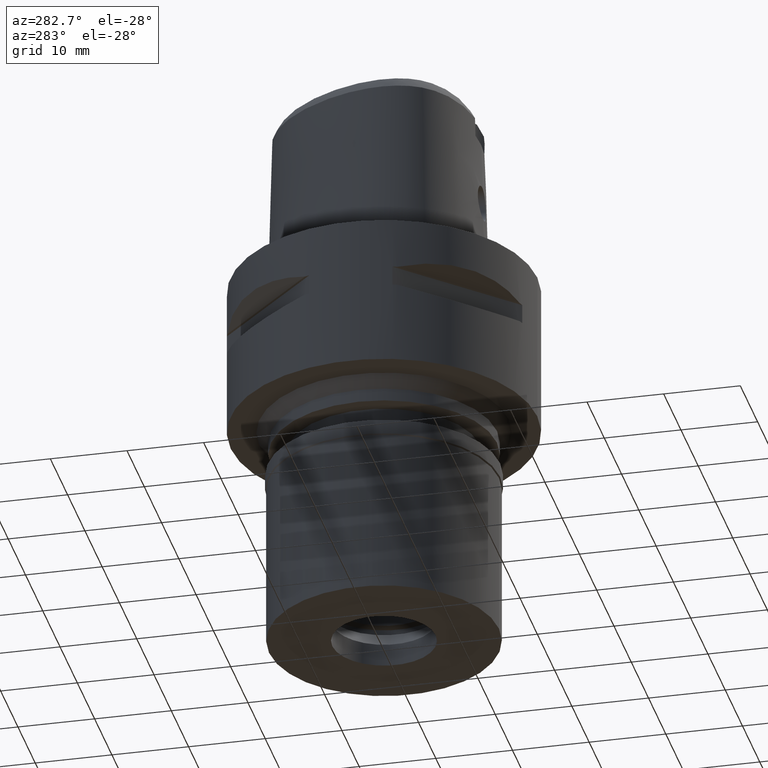
[diagram: clean part render]
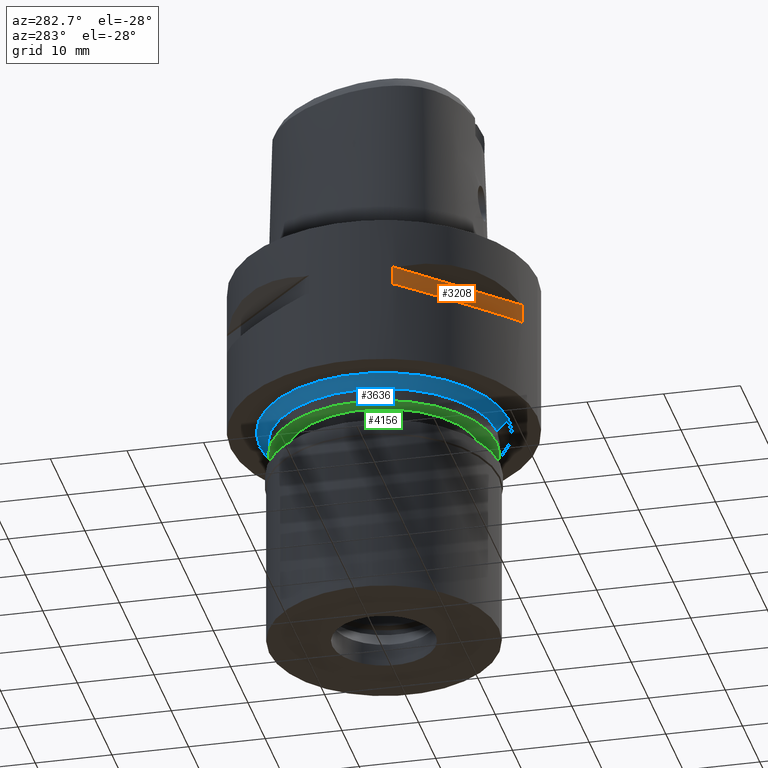
[diagram: same view with three faces highlighted in distinct colors, each labeled with its STEP entity id]
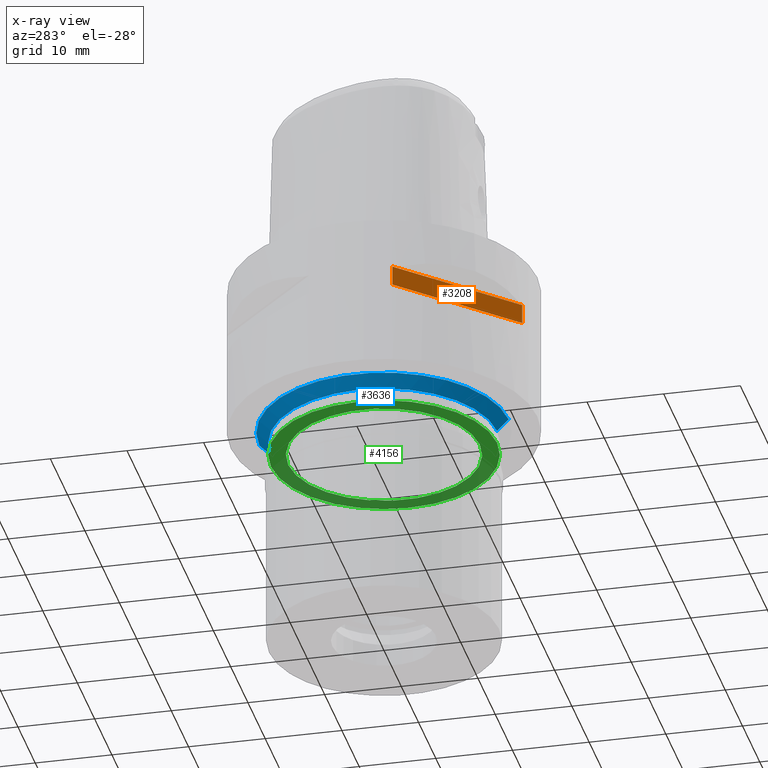
[diagram: x-ray of the same camera — body ghosted, the three highlighted faces saturated]
A machine part, auxiliary view with three faces highlighted in distinct colors.
The next image is the same camera in x-ray (body ghosted, the three faces saturated) — at least one of them is partly hidden behind the body in this view.
Their STEP definitions:

[orange] entity #3208 — the highlighted planar face has unit normal (0.7071, 0.7071, 0).
#304 = VECTOR ( 'NONE', #682, 1000.000000000000000 ) ;
#353 = VERTEX_POINT ( 'NONE', #2636 ) ;
#405 = DIRECTION ( 'NONE',  ( 0.7071067811865474617, -0.7071067811865474617, 0.0000000000000000000 ) ) ;
#682 = DIRECTION ( 'NONE',  ( 0.0000000000000000000, 0.0000000000000000000, 1.000000000000000000 ) ) ;
#736 = DIRECTION ( 'NONE',  ( 0.7071067811865474617, -0.7071067811865474617, 0.0000000000000000000 ) ) ;
#938 = ORIENTED_EDGE ( 'NONE', *, *, #1318, .T. ) ;
#1071 = LINE ( 'NONE', #4252, #304 ) ;
#1314 = LINE ( 'NONE', #4280, #3496 ) ;
#1318 = EDGE_CURVE ( 'NONE', #353, #3125, #1071, .T. ) ;
#1339 = DIRECTION ( 'NONE',  ( 0.0000000000000000000, 0.0000000000000000000, -1.000000000000000000 ) ) ;
#1396 = VECTOR ( 'NONE', #405, 1000.000000000000114 ) ;
#1448 = LINE ( 'NONE', #3971, #4451 ) ;
#1695 = DIRECTION ( 'NONE',  ( 0.7071067811865475727, 0.7071067811865475727, 0.0000000000000000000 ) ) ;
#1713 = EDGE_CURVE ( 'NONE', #3916, #353, #1448, .T. ) ;
#2206 = CARTESIAN_POINT ( 'NONE',  ( -19.24906036483000094, -5.428966298580000682, -6.700000000000000178 ) ) ;
#2208 = CARTESIAN_POINT ( 'NONE',  ( -19.24906036483000094, -5.428966298579000593, -6.700000000000000178 ) ) ;
#2532 = EDGE_LOOP ( 'NONE', ( #3256, #3490, #3942, #938 ) ) ;
#2607 = VERTEX_POINT ( 'NONE', #2206 ) ;
#2636 = CARTESIAN_POINT ( 'NONE',  ( -5.428966298580000682, -19.24906036483000094, -9.299999999999998934 ) ) ;
#2796 = CARTESIAN_POINT ( 'NONE',  ( -5.428966298579000593, -19.24906036483000094, -6.700000000000000178 ) ) ;
#2949 = LINE ( 'NONE', #2208, #1396 ) ;
#3125 = VERTEX_POINT ( 'NONE', #2796 ) ;
#3208 = ADVANCED_FACE ( 'NONE', ( #4254 ), #4205, .F. ) ;
#3256 = ORIENTED_EDGE ( 'NONE', *, *, #4160, .F. ) ;
#3280 = EDGE_CURVE ( 'NONE', #2607, #3916, #1314, .T. ) ;
#3312 = CARTESIAN_POINT ( 'NONE',  ( -19.24906036483000094, -5.428966298579000593, -9.299999999999998934 ) ) ;
#3490 = ORIENTED_EDGE ( 'NONE', *, *, #3280, .T. ) ;
#3496 = VECTOR ( 'NONE', #4558, 1000.000000000000000 ) ;
#3565 = CARTESIAN_POINT ( 'NONE',  ( -1.732411613907000048, -22.94561504949999886, -6.700000000000000178 ) ) ;
#3641 = AXIS2_PLACEMENT_3D ( 'NONE', #3565, #1695, #1339 ) ;
#3916 = VERTEX_POINT ( 'NONE', #3312 ) ;
#3942 = ORIENTED_EDGE ( 'NONE', *, *, #1713, .T. ) ;
#3971 = CARTESIAN_POINT ( 'NONE',  ( -19.24906036483000094, -5.428966298579000593, -9.299999999999998934 ) ) ;
#4160 = EDGE_CURVE ( 'NONE', #2607, #3125, #2949, .T. ) ;
#4205 = PLANE ( 'NONE',  #3641 ) ;
#4252 = CARTESIAN_POINT ( 'NONE',  ( -5.428966298579000593, -19.24906036483000094, -9.299999999999998934 ) ) ;
#4254 = FACE_OUTER_BOUND ( 'NONE', #2532, .T. ) ;
#4280 = CARTESIAN_POINT ( 'NONE',  ( -19.24906036483000094, -5.428966298579000593, -6.700000000000000178 ) ) ;
#4451 = VECTOR ( 'NONE', #736, 1000.000000000000114 ) ;
#4558 = DIRECTION ( 'NONE',  ( 0.0000000000000000000, 0.0000000000000000000, -1.000000000000000000 ) ) ;

[blue] entity #3636 — the highlighted conical surface has half-angle 45 deg.
#49 = DIRECTION ( 'NONE',  ( 0.0000000000000000000, -1.000000000000000000, 0.0000000000000000000 ) ) ;
#110 = DIRECTION ( 'NONE',  ( 0.0000000000000000000, 0.7071067811865474617, -0.7071067811865474617 ) ) ;
#223 = DIRECTION ( 'NONE',  ( 0.0000000000000000000, 0.0000000000000000000, 1.000000000000000000 ) ) ;
#516 = VERTEX_POINT ( 'NONE', #3797 ) ;
#548 = AXIS2_PLACEMENT_3D ( 'NONE', #4316, #4340, #2901 ) ;
#636 = CONICAL_SURFACE ( 'NONE', #1007, 15.50000000000000000, 0.7853981633972997312 ) ;
#910 = CARTESIAN_POINT ( 'NONE',  ( 0.0000000000000000000, 0.0000000000000000000, -20.75000000000000000 ) ) ;
#1007 = AXIS2_PLACEMENT_3D ( 'NONE', #910, #223, #3793 ) ;
#1052 = CARTESIAN_POINT ( 'NONE',  ( 0.0000000000000000000, -14.75000000000000000, -21.50000000000000000 ) ) ;
#1138 = VERTEX_POINT ( 'NONE', #3128 ) ;
#1144 = CIRCLE ( 'NONE', #3024, 14.75000000000000000 ) ;
#1180 = ORIENTED_EDGE ( 'NONE', *, *, #1545, .F. ) ;
#1218 = ORIENTED_EDGE ( 'NONE', *, *, #3460, .T. ) ;
#1358 = VECTOR ( 'NONE', #110, 1000.000000000000114 ) ;
#1545 = EDGE_CURVE ( 'NONE', #4286, #3332, #4022, .T. ) ;
#1867 = CARTESIAN_POINT ( 'NONE',  ( 0.0000000000000000000, 0.0000000000000000000, -21.50000000000000000 ) ) ;
#2655 = FACE_OUTER_BOUND ( 'NONE', #2927, .T. ) ;
#2901 = DIRECTION ( 'NONE',  ( 0.0000000000000000000, -1.000000000000000000, 0.0000000000000000000 ) ) ;
#2927 = EDGE_LOOP ( 'NONE', ( #3517, #1180, #4641, #1218 ) ) ;
#3024 = AXIS2_PLACEMENT_3D ( 'NONE', #1867, #3290, #49 ) ;
#3128 = CARTESIAN_POINT ( 'NONE',  ( 0.0000000000000000000, 14.75000000000000000, -21.50000000000000000 ) ) ;
#3226 = CARTESIAN_POINT ( 'NONE',  ( 0.0000000000000000000, 16.25000000000000000, -20.00000000000000000 ) ) ;
#3270 = DIRECTION ( 'NONE',  ( 0.0000000000000000000, -0.7071067811865474617, -0.7071067811865474617 ) ) ;
#3290 = DIRECTION ( 'NONE',  ( 0.0000000000000000000, 0.0000000000000000000, -1.000000000000000000 ) ) ;
#3332 = VERTEX_POINT ( 'NONE', #1052 ) ;
#3353 = CARTESIAN_POINT ( 'NONE',  ( 0.0000000000000000000, -16.25000000000000000, -20.00000000000000000 ) ) ;
#3460 = EDGE_CURVE ( 'NONE', #516, #1138, #3979, .T. ) ;
#3517 = ORIENTED_EDGE ( 'NONE', *, *, #3559, .F. ) ;
#3559 = EDGE_CURVE ( 'NONE', #3332, #1138, #1144, .T. ) ;
#3636 = ADVANCED_FACE ( 'NONE', ( #2655 ), #636, .T. ) ;
#3793 = DIRECTION ( 'NONE',  ( 0.0000000000000000000, 1.000000000000000000, 0.0000000000000000000 ) ) ;
#3797 = CARTESIAN_POINT ( 'NONE',  ( 0.0000000000000000000, 16.25000000000000000, -20.00000000000000000 ) ) ;
#3979 = LINE ( 'NONE', #3226, #4552 ) ;
#4017 = CARTESIAN_POINT ( 'NONE',  ( 0.0000000000000000000, -16.25000000000000000, -20.00000000000000000 ) ) ;
#4022 = LINE ( 'NONE', #3353, #1358 ) ;
#4108 = EDGE_CURVE ( 'NONE', #4286, #516, #4639, .T. ) ;
#4286 = VERTEX_POINT ( 'NONE', #4017 ) ;
#4316 = CARTESIAN_POINT ( 'NONE',  ( 0.0000000000000000000, 0.0000000000000000000, -20.00000000000000000 ) ) ;
#4340 = DIRECTION ( 'NONE',  ( 0.0000000000000000000, 0.0000000000000000000, -1.000000000000000000 ) ) ;
#4552 = VECTOR ( 'NONE', #3270, 1000.000000000000114 ) ;
#4639 = CIRCLE ( 'NONE', #548, 16.25000000000000000 ) ;
#4641 = ORIENTED_EDGE ( 'NONE', *, *, #4108, .T. ) ;

[green] entity #4156 — the highlighted planar face has unit normal (0, 0, -1).
#25 = DIRECTION ( 'NONE',  ( 0.0000000000000000000, -1.000000000000000000, 0.0000000000000000000 ) ) ;
#116 = CARTESIAN_POINT ( 'NONE',  ( 0.0000000000000000000, 1.249139735129999848E-14, -23.19999999999999929 ) ) ;
#384 = CARTESIAN_POINT ( 'NONE',  ( 0.0000000000000000000, 14.75000000000000000, -23.19999999999999929 ) ) ;
#421 = EDGE_CURVE ( 'NONE', #4262, #2824, #4069, .T. ) ;
#586 = DIRECTION ( 'NONE',  ( 0.0000000000000000000, 0.0000000000000000000, -1.000000000000000000 ) ) ;
#607 = CARTESIAN_POINT ( 'NONE',  ( 0.0000000000000000000, 1.249139735129999848E-14, -23.19999999999999929 ) ) ;
#609 = EDGE_CURVE ( 'NONE', #3365, #4190, #3173, .T. ) ;
#722 = FACE_BOUND ( 'NONE', #3331, .T. ) ;
#737 = PLANE ( 'NONE',  #3954 ) ;
#813 = CARTESIAN_POINT ( 'NONE',  ( 0.0000000000000000000, -14.75000000000000000, -23.19999999999999929 ) ) ;
#841 = CIRCLE ( 'NONE', #1302, 14.75000000000000000 ) ;
#880 = DIRECTION ( 'NONE',  ( 0.0000000000000000000, 1.000000000000000000, 0.0000000000000000000 ) ) ;
#913 = DIRECTION ( 'NONE',  ( 0.0000000000000000000, 0.0000000000000000000, 1.000000000000000000 ) ) ;
#1091 = CARTESIAN_POINT ( 'NONE',  ( 0.0000000000000000000, 0.0000000000000000000, -23.19999999999999929 ) ) ;
#1200 = ORIENTED_EDGE ( 'NONE', *, *, #421, .F. ) ;
#1302 = AXIS2_PLACEMENT_3D ( 'NONE', #607, #1990, #3358 ) ;
#1511 = DIRECTION ( 'NONE',  ( 0.0000000000000000000, 0.0000000000000000000, -1.000000000000000000 ) ) ;
#1672 = CARTESIAN_POINT ( 'NONE',  ( 0.0000000000000000000, 1.249139735129999848E-14, -23.19999999999999929 ) ) ;
#1990 = DIRECTION ( 'NONE',  ( 0.0000000000000000000, 0.0000000000000000000, 1.000000000000000000 ) ) ;
#2067 = ORIENTED_EDGE ( 'NONE', *, *, #609, .F. ) ;
#2239 = AXIS2_PLACEMENT_3D ( 'NONE', #4422, #913, #4181 ) ;
#2660 = DIRECTION ( 'NONE',  ( 0.0000000000000000000, -1.000000000000000000, 0.0000000000000000000 ) ) ;
#2724 = AXIS2_PLACEMENT_3D ( 'NONE', #116, #4122, #880 ) ;
#2824 = VERTEX_POINT ( 'NONE', #813 ) ;
#2926 = CARTESIAN_POINT ( 'NONE',  ( 0.0000000000000000000, 12.50000000000000000, -23.19999999999999929 ) ) ;
#3109 = CIRCLE ( 'NONE', #2724, 12.50000000000000000 ) ;
#3173 = CIRCLE ( 'NONE', #4311, 12.50000000000000000 ) ;
#3240 = FACE_OUTER_BOUND ( 'NONE', #3815, .T. ) ;
#3331 = EDGE_LOOP ( 'NONE', ( #3957, #2067 ) ) ;
#3358 = DIRECTION ( 'NONE',  ( 0.0000000000000000000, -1.000000000000000000, 0.0000000000000000000 ) ) ;
#3365 = VERTEX_POINT ( 'NONE', #3648 ) ;
#3498 = ORIENTED_EDGE ( 'NONE', *, *, #3682, .F. ) ;
#3648 = CARTESIAN_POINT ( 'NONE',  ( 0.0000000000000000000, -12.50000000000000000, -23.19999999999999929 ) ) ;
#3682 = EDGE_CURVE ( 'NONE', #2824, #4262, #841, .T. ) ;
#3699 = EDGE_CURVE ( 'NONE', #4190, #3365, #3109, .T. ) ;
#3815 = EDGE_LOOP ( 'NONE', ( #1200, #3498 ) ) ;
#3954 = AXIS2_PLACEMENT_3D ( 'NONE', #1091, #1511, #25 ) ;
#3957 = ORIENTED_EDGE ( 'NONE', *, *, #3699, .F. ) ;
#4069 = CIRCLE ( 'NONE', #2239, 14.75000000000000000 ) ;
#4122 = DIRECTION ( 'NONE',  ( 0.0000000000000000000, 0.0000000000000000000, -1.000000000000000000 ) ) ;
#4156 = ADVANCED_FACE ( 'NONE', ( #3240, #722 ), #737, .T. ) ;
#4181 = DIRECTION ( 'NONE',  ( 0.0000000000000000000, 1.000000000000000000, 0.0000000000000000000 ) ) ;
#4190 = VERTEX_POINT ( 'NONE', #2926 ) ;
#4262 = VERTEX_POINT ( 'NONE', #384 ) ;
#4311 = AXIS2_PLACEMENT_3D ( 'NONE', #1672, #586, #2660 ) ;
#4422 = CARTESIAN_POINT ( 'NONE',  ( 0.0000000000000000000, 1.249139735129999848E-14, -23.19999999999999929 ) ) ;